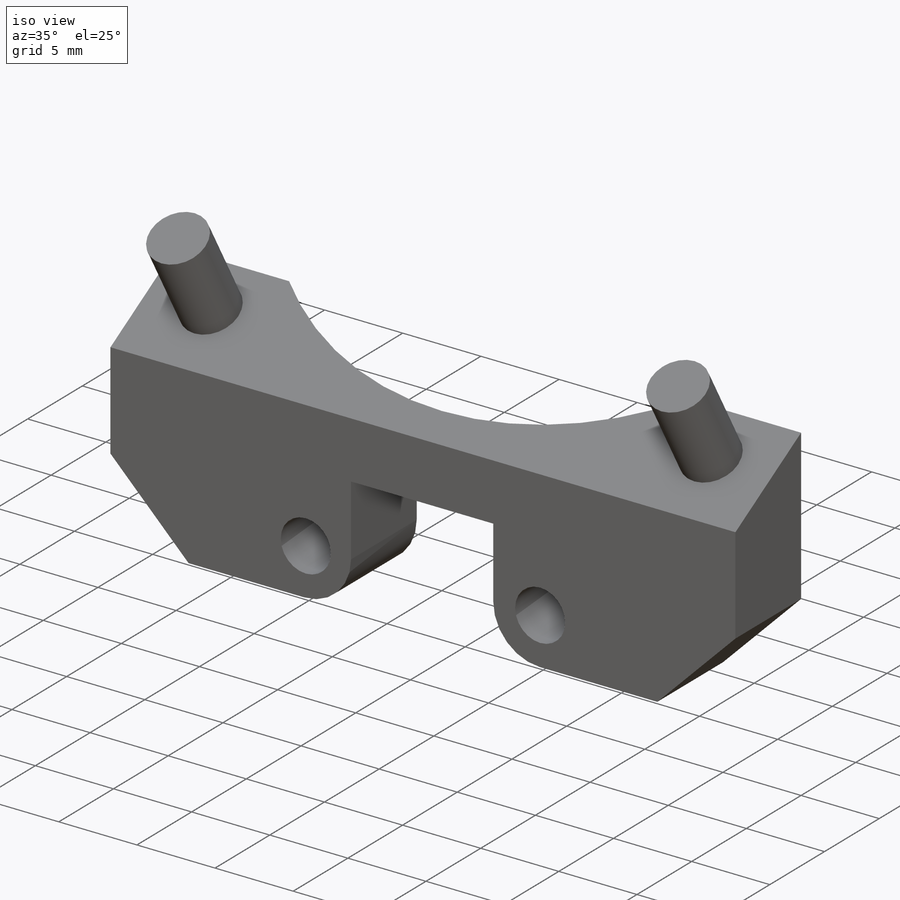
[diagram: iso view]
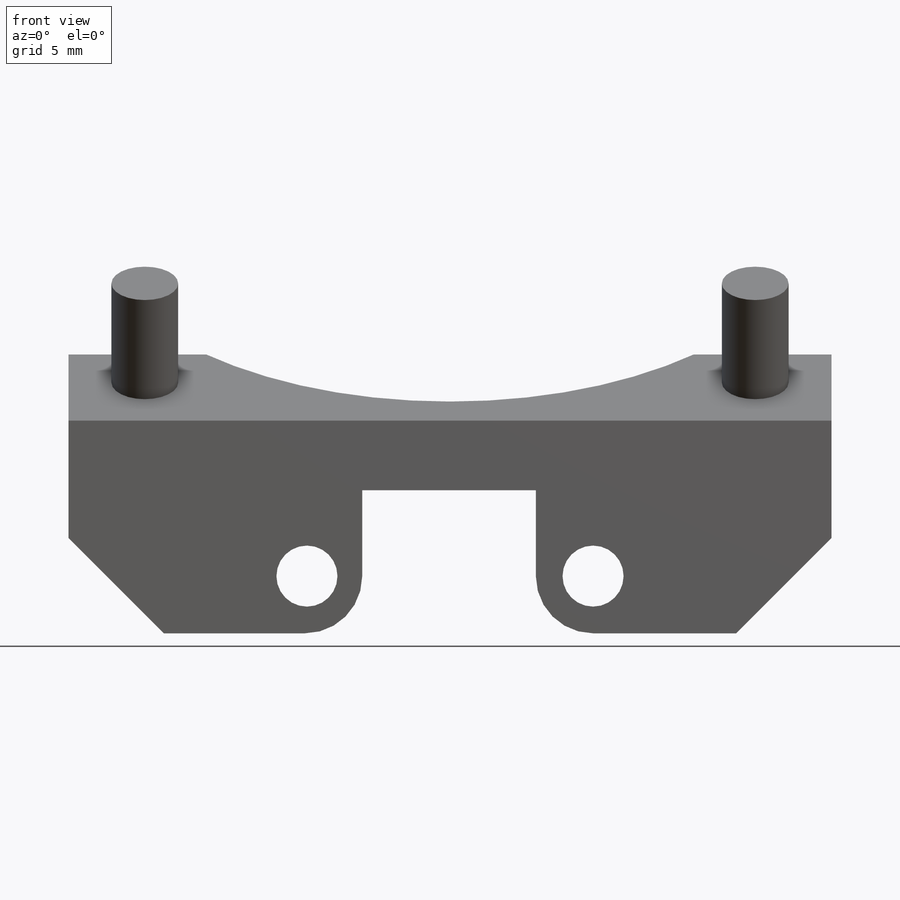
[diagram: front view]
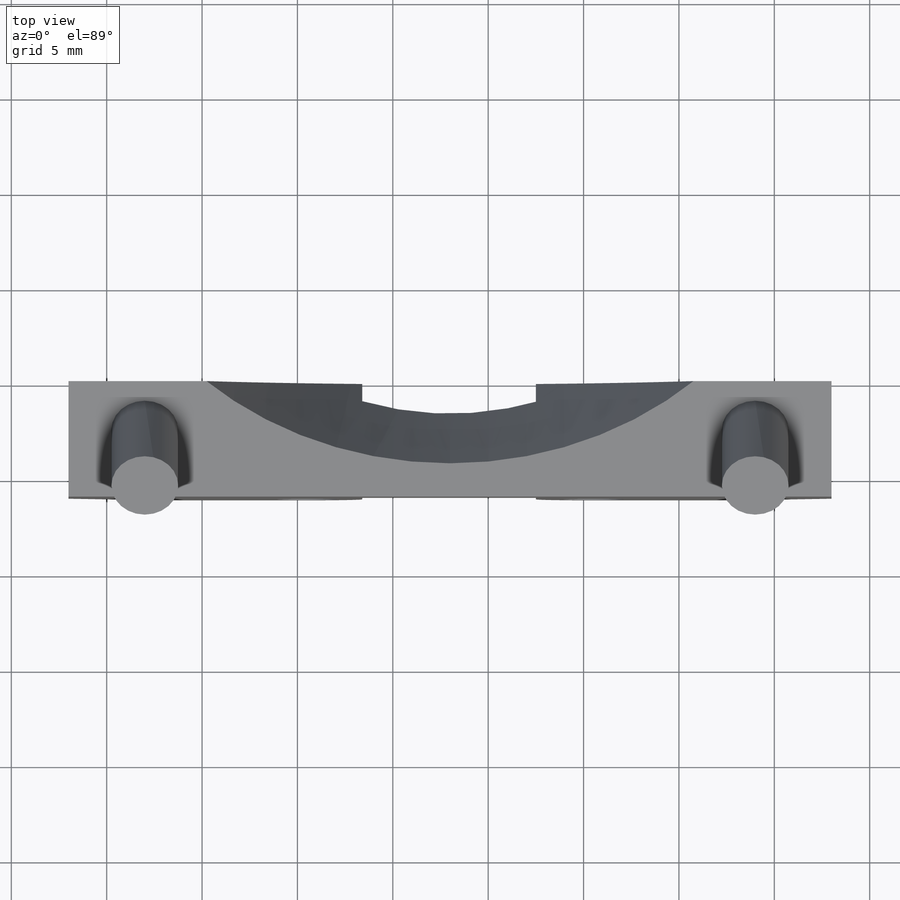
[diagram: top view]
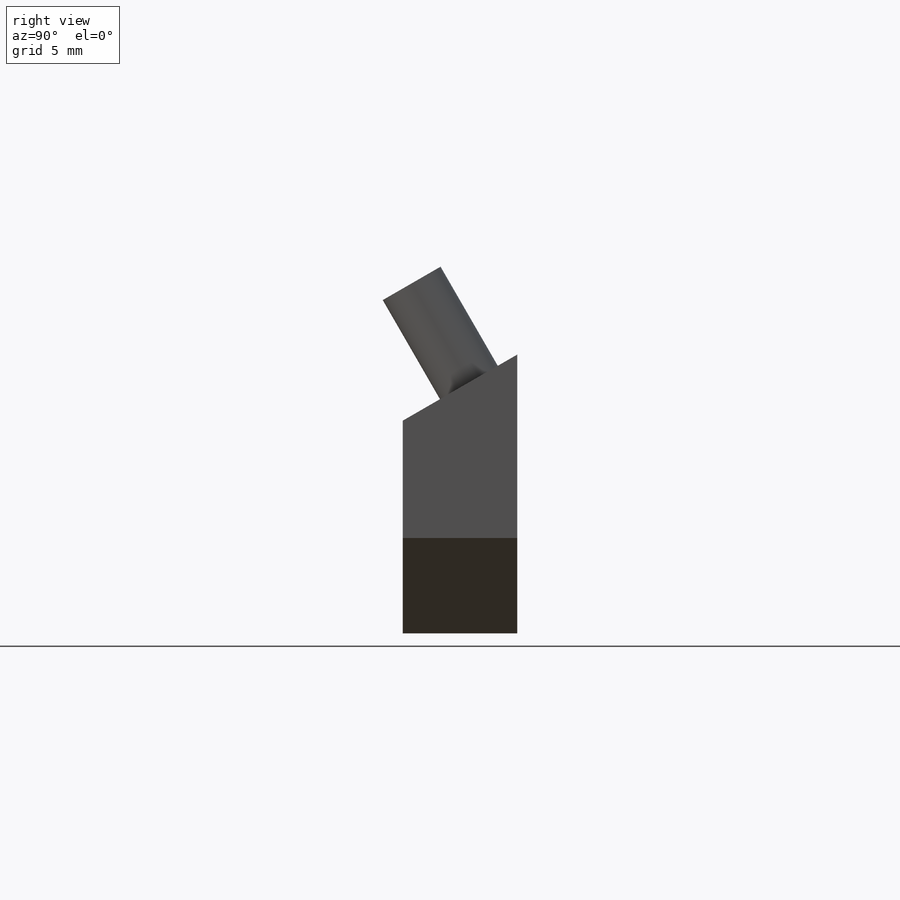
[diagram: right view]
SOLIDWORKS PART (.sldprt)
format: sldprt  version: not decoded by parser v0  size: 289,792 bytes
history: native  units: mm
features: sketch x6, extrude x5, plane x2, material x1, mirror x1, chamfer x1, fillet x1, cut_extrude x1 (+12 scaffold rows collapsed)
feature tree (30):
  scaffold x12  (default folders/planes/origin — collapsed)
  material  "Material <not specified>"
  plane  "Plane1"
  sketch  "Sketch3"  dims[c1.D2=3.2mm c1.D6=9.0mm c2.D2=40.0mm c2.D3=40.0mm c2.D4=11.15mm c2.D1=11.15mm c3.D4=3.0mm c3.D5=15.0mm c3.D1=0.0mm]
  extrude  "Boss-Extrude1"  Depth=6mm
  sketch  "Sketch4"  dims[D1=6.4mm D2=6.4mm]
  extrude  "Boss-Extrude2"  Depth=2.5mm
  sketch  "Sketch5"  dims[c1.D1=~5.448085mm c2.D1=50.0deg c2.D2=4.5mm c3.D2=45.0deg c3.D1=4.5mm c4.D1=30.0deg]
  extrude  "Boss-Extrude3"  [1 undecoded]
  plane  "Plane2"
  sketch  "Sketch7"  dims[c1.D1=3.5mm c1.D2=3.5mm c1.D3=3.5mm c2.D2=4.0mm c2.D3=4.0mm c3.D3=4.0mm c3.D4=~4.79301mm c3.D2=4.0mm]
  extrude  "Boss-Extrude5"  Depth=6mm
  mirror  "Mirror2"
  sketch  "Sketch8"  dims[D1=0.0mm]
  extrude  "Boss-Extrude6"  Depth=0.5mm
  chamfer  "Chamfer1"  Distance=5mm Angle=45deg
  fillet  "Fillet1"  Radius=3mm
  sketch  "Sketch9"  dims[D1=38.0mm D2=17.0mm]
  cut_extrude  "Cut-Extrude1"  [1 undecoded]
decode coverage: 12 of 15 modeling features carry decoded parameters
note: ~ marks probable driven/reference dimensions
note: 2 parameter values undecoded
note: suppression state not decoded; provenance and decode notes live in map.json
